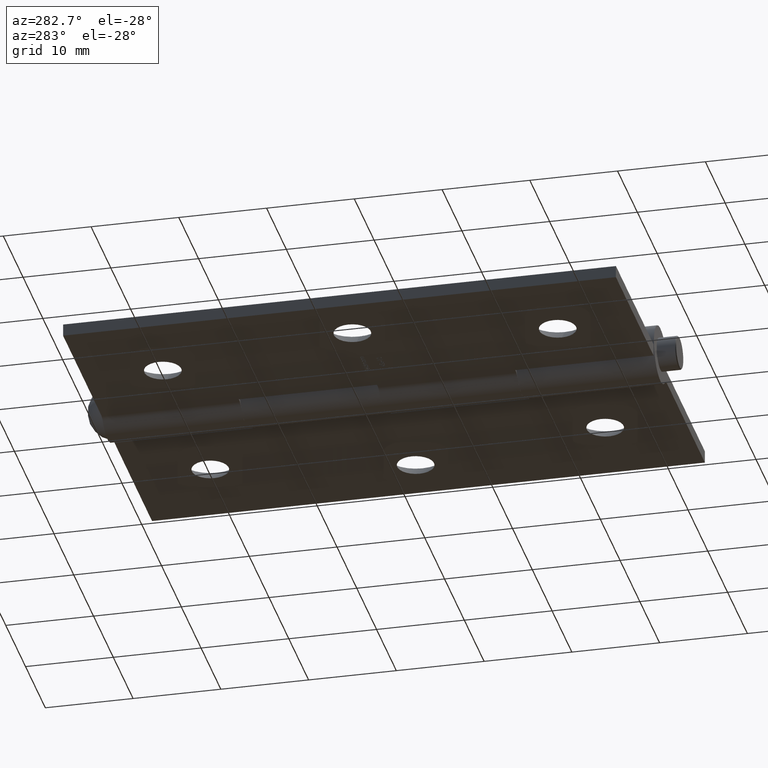
[diagram: clean part render]
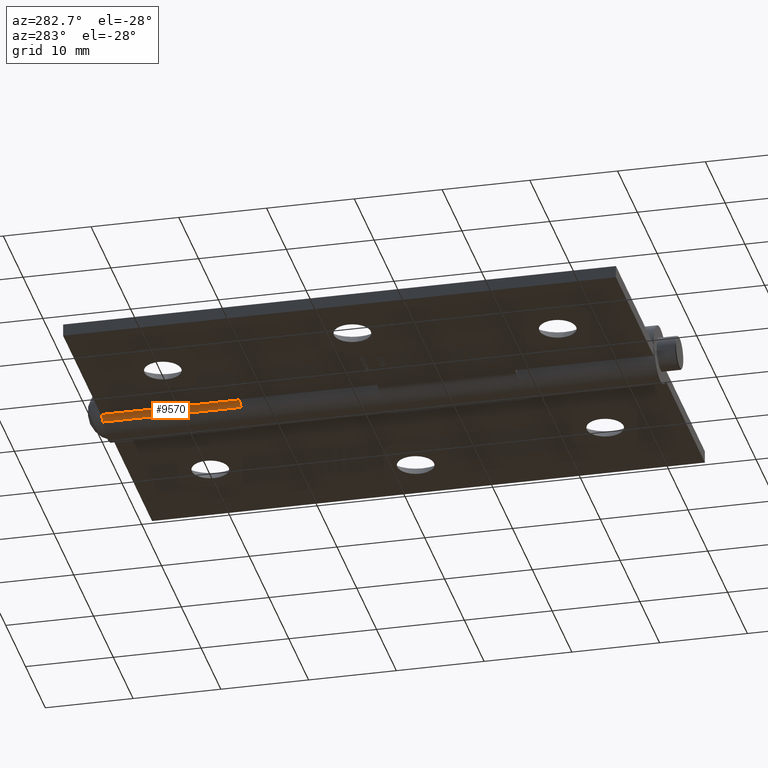
[diagram: same view with one face highlighted and labeled with its STEP entity id]
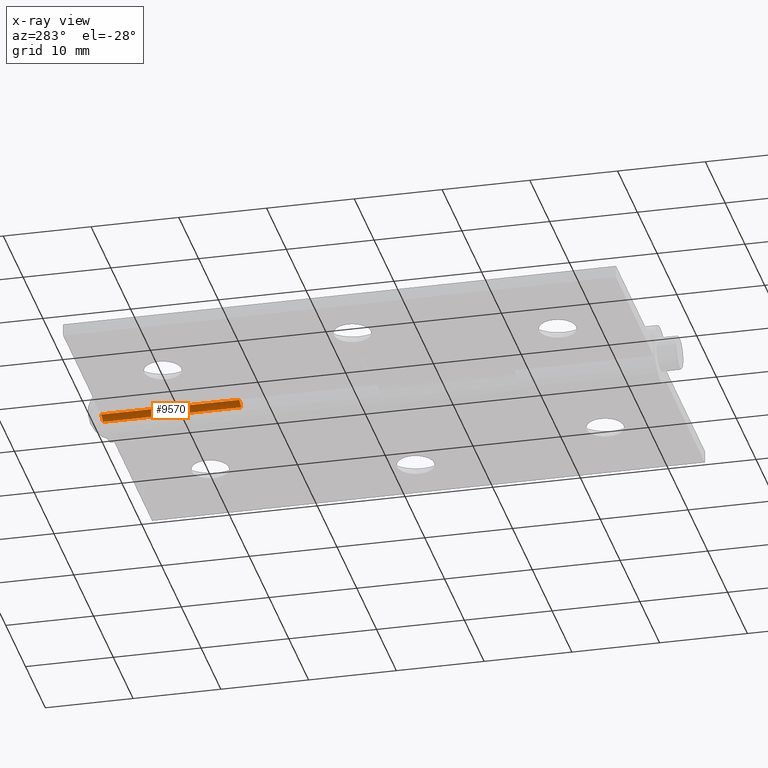
[diagram: x-ray of the same camera — body ghosted, the highlighted face saturated]
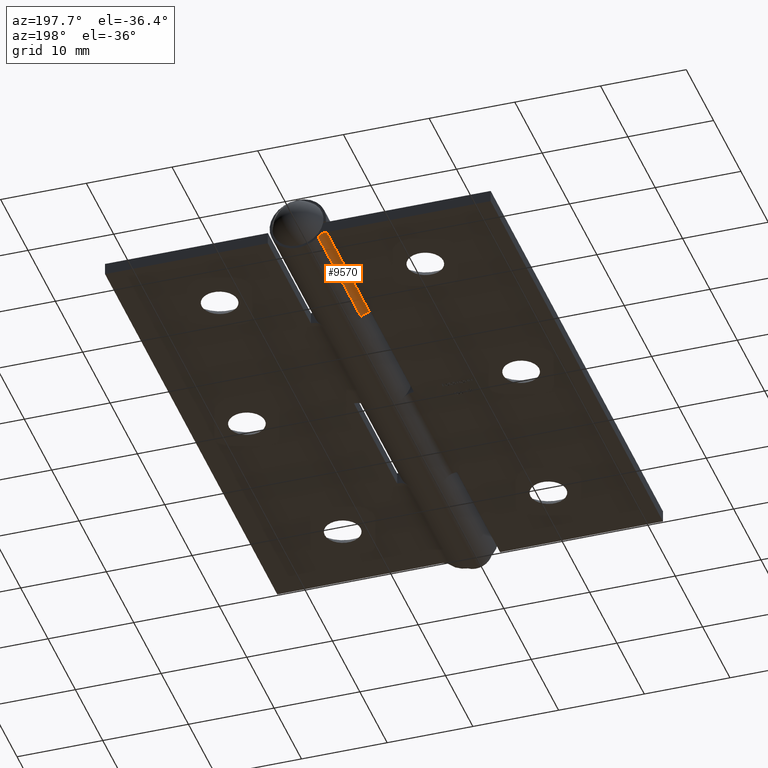
[diagram: same view with one face highlighted and labeled with its STEP entity id]
A machine part, auxiliary view. The second image highlights one B-rep face of the part: STEP entity #9570.
The next image is the same camera in x-ray: the body ghosted, the highlighted face saturated — about 0% of this face is hidden behind the body in this view.
A second angle (auxiliary view) of the same face is appended — the face is thin or edge-on in the first view.
In plain terms, the highlighted cylindrical surface (edge-blend (fillet) strip) has radius 1.4 mm, axis along (-0, -1, -0).
Its self-contained STEP definition (entity closure, byte-faithful):
#163 = VECTOR ( 'NONE', #5118, 1000.000000000000000 ) ;
#478 = CARTESIAN_POINT ( 'NONE',  ( -3.346640106136306247, 31.50000000000000000, -3.299999999999999822 ) ) ;
#714 = LINE ( 'NONE', #5831, #163 ) ;
#731 = EDGE_CURVE ( 'NONE', #4393, #11106, #9498, .T. ) ;
#816 = CARTESIAN_POINT ( 'NONE',  ( -3.346640106136306247, 31.50000000000000000, -1.899999999999999689 ) ) ;
#878 = CIRCLE ( 'NONE', #1328, 1.399999999999999245 ) ;
#1223 = DIRECTION ( 'NONE',  ( 0.000000000000000000, 0.000000000000000000, -1.000000000000000000 ) ) ;
#1328 = AXIS2_PLACEMENT_3D ( 'NONE', #478, #7566, #4117 ) ;
#2106 = CARTESIAN_POINT ( 'NONE',  ( -3.346640106136306247, 15.75000000000000000, -3.299999999999999822 ) ) ;
#2115 = VERTEX_POINT ( 'NONE', #816 ) ;
#2493 = ORIENTED_EDGE ( 'NONE', *, *, #10435, .T. ) ;
#2831 = DIRECTION ( 'NONE',  ( 2.312964634635742957E-16, -1.000000000000000000, -0.000000000000000000 ) ) ;
#2953 = DIRECTION ( 'NONE',  ( -0.000000000000000000, -1.000000000000000000, -0.000000000000000000 ) ) ;
#3787 = DIRECTION ( 'NONE',  ( -1.000000000000000000, 0.000000000000000000, 9.293161478447181990E-16 ) ) ;
#4075 = CARTESIAN_POINT ( 'NONE',  ( -3.346640106136306247, 31.50000000000000000, -1.899999999999999689 ) ) ;
#4117 = DIRECTION ( 'NONE',  ( 0.000000000000000000, 0.000000000000000000, -1.000000000000000000 ) ) ;
#4119 = EDGE_LOOP ( 'NONE', ( #2493, #8834, #8196, #6827 ) ) ;
#4393 = VERTEX_POINT ( 'NONE', #9020 ) ;
#4710 = CARTESIAN_POINT ( 'NONE',  ( -3.346640106136306247, 31.50000000000000000, -3.299999999999999822 ) ) ;
#4905 = CARTESIAN_POINT ( 'NONE',  ( -3.346640106136309356, 15.75000000000000000, -1.899999999999999689 ) ) ;
#5118 = DIRECTION ( 'NONE',  ( -0.000000000000000000, -1.000000000000000000, -0.000000000000000000 ) ) ;
#5477 = CARTESIAN_POINT ( 'NONE',  ( -2.349768585159534684, 31.50000000000000000, -2.317021276595745416 ) ) ;
#5669 = CYLINDRICAL_SURFACE ( 'NONE', #6191, 1.399999999999999245 ) ;
#5729 = LINE ( 'NONE', #4075, #8627 ) ;
#5831 = CARTESIAN_POINT ( 'NONE',  ( -2.349768585159534684, 31.50000000000000000, -2.317021276595745416 ) ) ;
#6020 = EDGE_CURVE ( 'NONE', #2115, #11106, #5729, .T. ) ;
#6191 = AXIS2_PLACEMENT_3D ( 'NONE', #4710, #2953, #1223 ) ;
#6827 = ORIENTED_EDGE ( 'NONE', *, *, #7272, .F. ) ;
#7272 = EDGE_CURVE ( 'NONE', #10000, #2115, #878, .T. ) ;
#7566 = DIRECTION ( 'NONE',  ( -0.000000000000000000, -1.000000000000000000, 0.000000000000000000 ) ) ;
#8196 = ORIENTED_EDGE ( 'NONE', *, *, #6020, .F. ) ;
#8627 = VECTOR ( 'NONE', #11086, 1000.000000000000000 ) ;
#8834 = ORIENTED_EDGE ( 'NONE', *, *, #731, .T. ) ;
#9020 = CARTESIAN_POINT ( 'NONE',  ( -2.349768585159535128, 15.75000000000000000, -2.317021276595745860 ) ) ;
#9122 = FACE_OUTER_BOUND ( 'NONE', #4119, .T. ) ;
#9498 = CIRCLE ( 'NONE', #10709, 1.399999999999999689 ) ;
#9570 = ADVANCED_FACE ( 'NONE', ( #9122 ), #5669, .F. ) ;
#10000 = VERTEX_POINT ( 'NONE', #5477 ) ;
#10435 = EDGE_CURVE ( 'NONE', #10000, #4393, #714, .T. ) ;
#10709 = AXIS2_PLACEMENT_3D ( 'NONE', #2106, #2831, #3787 ) ;
#11086 = DIRECTION ( 'NONE',  ( -0.000000000000000000, -1.000000000000000000, -0.000000000000000000 ) ) ;
#11106 = VERTEX_POINT ( 'NONE', #4905 ) ;